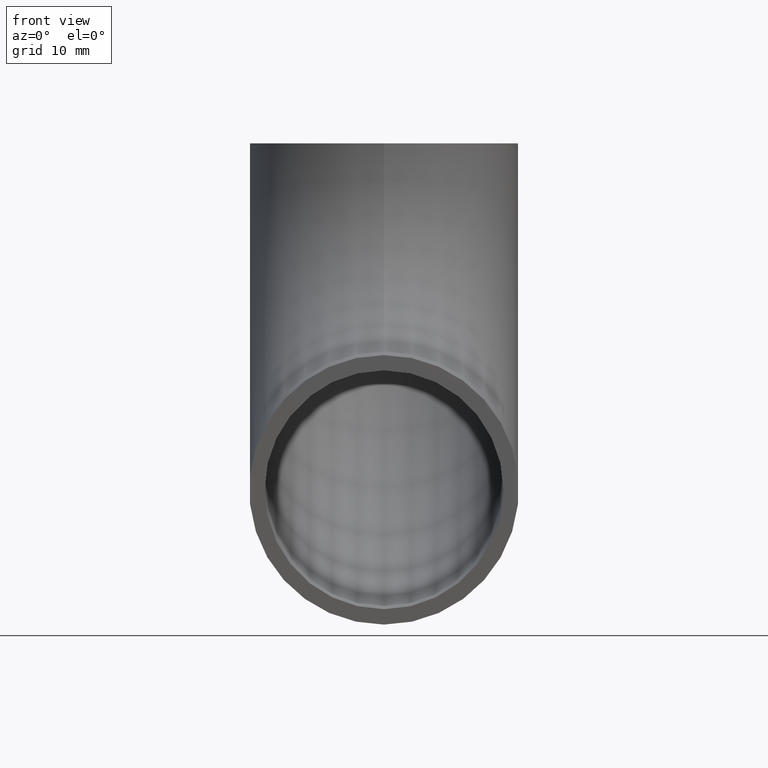
[diagram: clean part render]
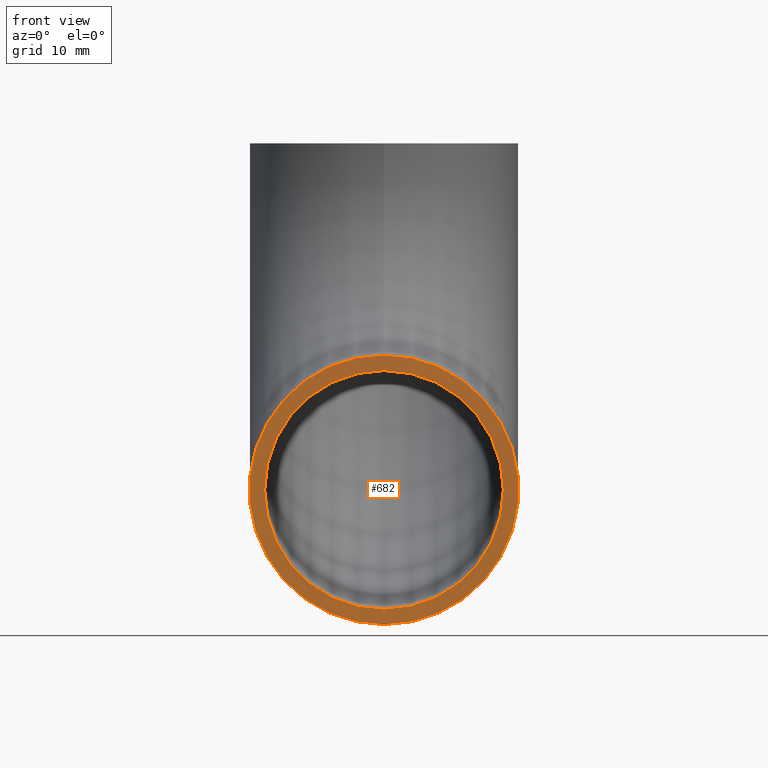
[diagram: same view with one face highlighted and labeled with its STEP entity id]
A machine part, front view. The second image highlights one B-rep face of the part: STEP entity #682.
In plain terms, the highlighted planar face has unit normal (0, 1, 0).
Its self-contained STEP definition (entity closure, byte-faithful):
#480 = VERTEX_POINT ( 'NONE', #9471 ) ;
#518 = DIRECTION ( 'NONE',  ( 0.000000000000000000, 1.000000000000000000, 0.000000000000000000 ) ) ;
#622 = DIRECTION ( 'NONE',  ( 0.000000000000000000, -0.000000000000000000, 1.000000000000000000 ) ) ;
#682 = ADVANCED_FACE ( 'NONE', ( #10465, #6803 ), #3158, .F. ) ;
#1009 = VERTEX_POINT ( 'NONE', #3753 ) ;
#1443 = CARTESIAN_POINT ( 'NONE',  ( 0.000000000000000000, 0.000000000000000000, -45.00000000000000000 ) ) ;
#1616 = DIRECTION ( 'NONE',  ( 0.000000000000000000, 1.000000000000000000, 0.000000000000000000 ) ) ;
#1656 = CIRCLE ( 'NONE', #5097, 15.50000000000000000 ) ;
#1762 = AXIS2_PLACEMENT_3D ( 'NONE', #1443, #8885, #3915 ) ;
#2415 = CARTESIAN_POINT ( 'NONE',  ( 0.000000000000000000, 0.000000000000000000, -45.00000000000000000 ) ) ;
#2927 = EDGE_LOOP ( 'NONE', ( #5173 ) ) ;
#3158 = PLANE ( 'NONE',  #4727 ) ;
#3246 = CIRCLE ( 'NONE', #1762, 17.50000000000000000 ) ;
#3753 = CARTESIAN_POINT ( 'NONE',  ( 0.000000000000000000, 0.000000000000000000, -29.50000000000000000 ) ) ;
#3915 = DIRECTION ( 'NONE',  ( 0.000000000000000000, 0.000000000000000000, 1.000000000000000000 ) ) ;
#4727 = AXIS2_PLACEMENT_3D ( 'NONE', #6487, #518, #622 ) ;
#5097 = AXIS2_PLACEMENT_3D ( 'NONE', #2415, #1616, #9934 ) ;
#5173 = ORIENTED_EDGE ( 'NONE', *, *, #6283, .F. ) ;
#5639 = EDGE_LOOP ( 'NONE', ( #10119 ) ) ;
#6283 = EDGE_CURVE ( 'NONE', #480, #480, #3246, .T. ) ;
#6487 = CARTESIAN_POINT ( 'NONE',  ( 0.000000000000000000, 0.000000000000000000, -45.00000000000000000 ) ) ;
#6803 = FACE_OUTER_BOUND ( 'NONE', #2927, .T. ) ;
#7519 = EDGE_CURVE ( 'NONE', #1009, #1009, #1656, .T. ) ;
#8885 = DIRECTION ( 'NONE',  ( 0.000000000000000000, 1.000000000000000000, 0.000000000000000000 ) ) ;
#9471 = CARTESIAN_POINT ( 'NONE',  ( 0.000000000000000000, 0.000000000000000000, -27.49999999999999645 ) ) ;
#9934 = DIRECTION ( 'NONE',  ( 0.000000000000000000, 0.000000000000000000, 1.000000000000000000 ) ) ;
#10119 = ORIENTED_EDGE ( 'NONE', *, *, #7519, .T. ) ;
#10465 = FACE_BOUND ( 'NONE', #5639, .T. ) ;